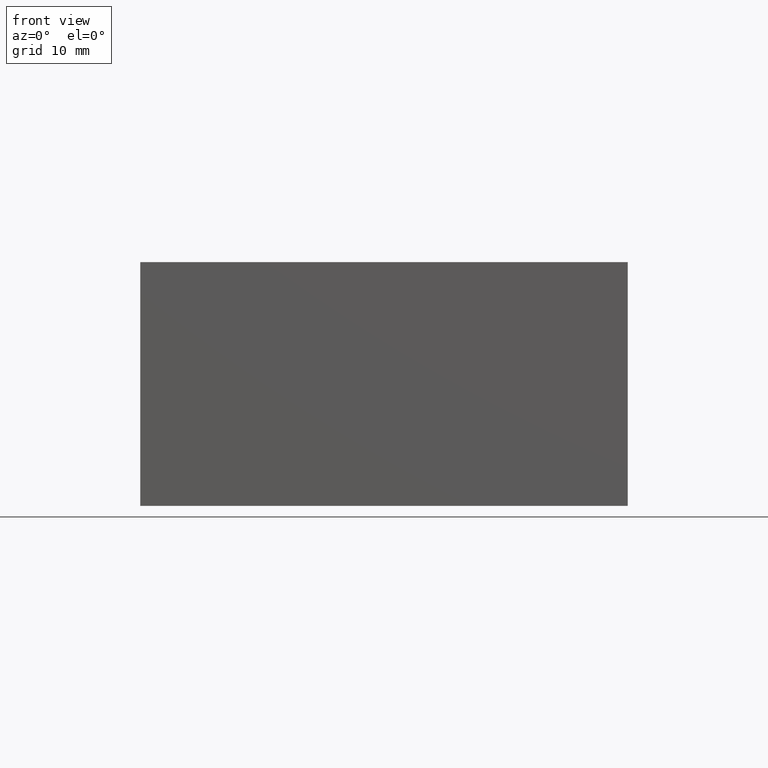
[diagram: clean part render]
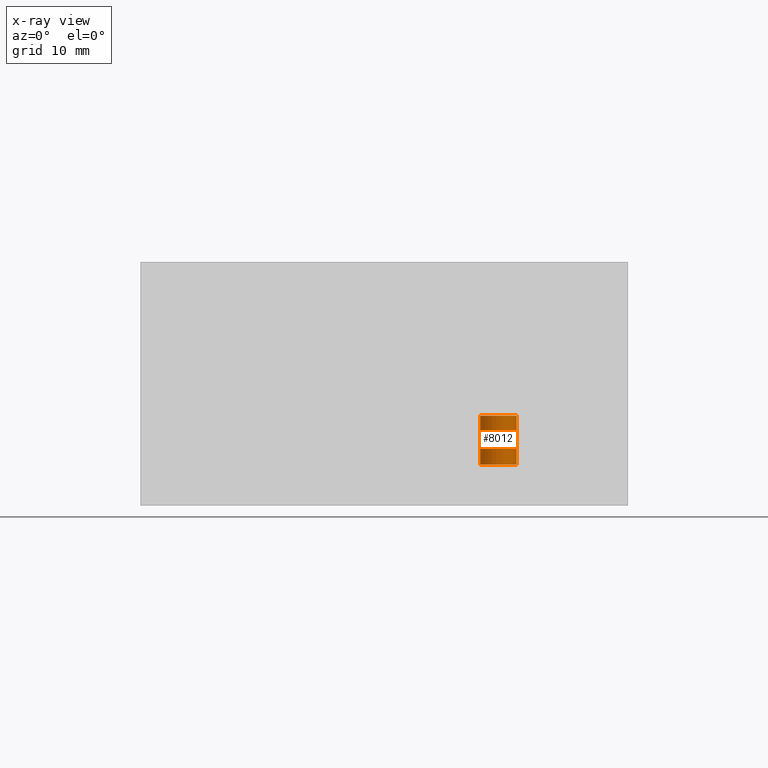
[diagram: x-ray — body ghosted, one internal face saturated and labeled with its STEP entity id]
A machine part, front view, then the same camera in x-ray: the body is ghosted and one INTERNAL B-rep face — a face not visible from any outside direction — is saturated and labeled: STEP entity #8012.
In plain terms, the highlighted cylindrical surface (bore or boss wall) has radius 1.8923 mm, axis along (0, 0, 1).
Its self-contained STEP definition (entity closure, byte-faithful):
#127=CIRCLE('',#8438,1.8923);
#128=CIRCLE('',#8439,1.8923);
#131=CIRCLE('',#8443,1.8923);
#181=CYLINDRICAL_SURFACE('',#8447,1.8923);
#891=FACE_OUTER_BOUND('',#1337,.T.);
#1337=EDGE_LOOP('',(#6910,#6911,#6912,#6913,#6914));
#2169=LINE('',#13444,#2976);
#2976=VECTOR('',#10084,1.8923);
#3713=VERTEX_POINT('',#13424);
#3714=VERTEX_POINT('',#13425);
#3718=VERTEX_POINT('',#13435);
#4796=EDGE_CURVE('',#3713,#3714,#127,.T.);
#4798=EDGE_CURVE('',#3714,#3713,#128,.T.);
#4801=EDGE_CURVE('',#3718,#3718,#131,.T.);
#4805=EDGE_CURVE('',#3718,#3714,#2169,.T.);
#6910=ORIENTED_EDGE('',*,*,#4801,.T.);
#6911=ORIENTED_EDGE('',*,*,#4805,.T.);
#6912=ORIENTED_EDGE('',*,*,#4796,.F.);
#6913=ORIENTED_EDGE('',*,*,#4798,.F.);
#6914=ORIENTED_EDGE('',*,*,#4805,.F.);
#8012=ADVANCED_FACE('',(#891),#181,.F.);
#8438=AXIS2_PLACEMENT_3D('',#13426,#10062,#10063);
#8439=AXIS2_PLACEMENT_3D('',#13429,#10065,#10066);
#8443=AXIS2_PLACEMENT_3D('',#13436,#10073,#10074);
#8447=AXIS2_PLACEMENT_3D('',#13443,#10082,#10083);
#10062=DIRECTION('center_axis',(0.,0.,1.));
#10063=DIRECTION('ref_axis',(1.,0.,0.));
#10065=DIRECTION('center_axis',(0.,0.,1.));
#10066=DIRECTION('ref_axis',(1.,0.,0.));
#10073=DIRECTION('center_axis',(0.,0.,1.));
#10074=DIRECTION('ref_axis',(1.,0.,0.));
#10082=DIRECTION('center_axis',(0.,0.,1.));
#10083=DIRECTION('ref_axis',(1.,0.,0.));
#10084=DIRECTION('',(0.,0.,-1.));
#13424=CARTESIAN_POINT('',(39.2049,5.5372,4.318));
#13425=CARTESIAN_POINT('',(35.4203,5.5372,4.318));
#13426=CARTESIAN_POINT('Origin',(37.3126,5.5372,4.318));
#13429=CARTESIAN_POINT('Origin',(37.3126,5.5372,4.318));
#13435=CARTESIAN_POINT('',(35.4203,5.5372,9.398));
#13436=CARTESIAN_POINT('Origin',(37.3126,5.5372,9.398));
#13443=CARTESIAN_POINT('Origin',(37.3126,5.5372,14.859));
#13444=CARTESIAN_POINT('',(35.4203,5.5372,14.859));